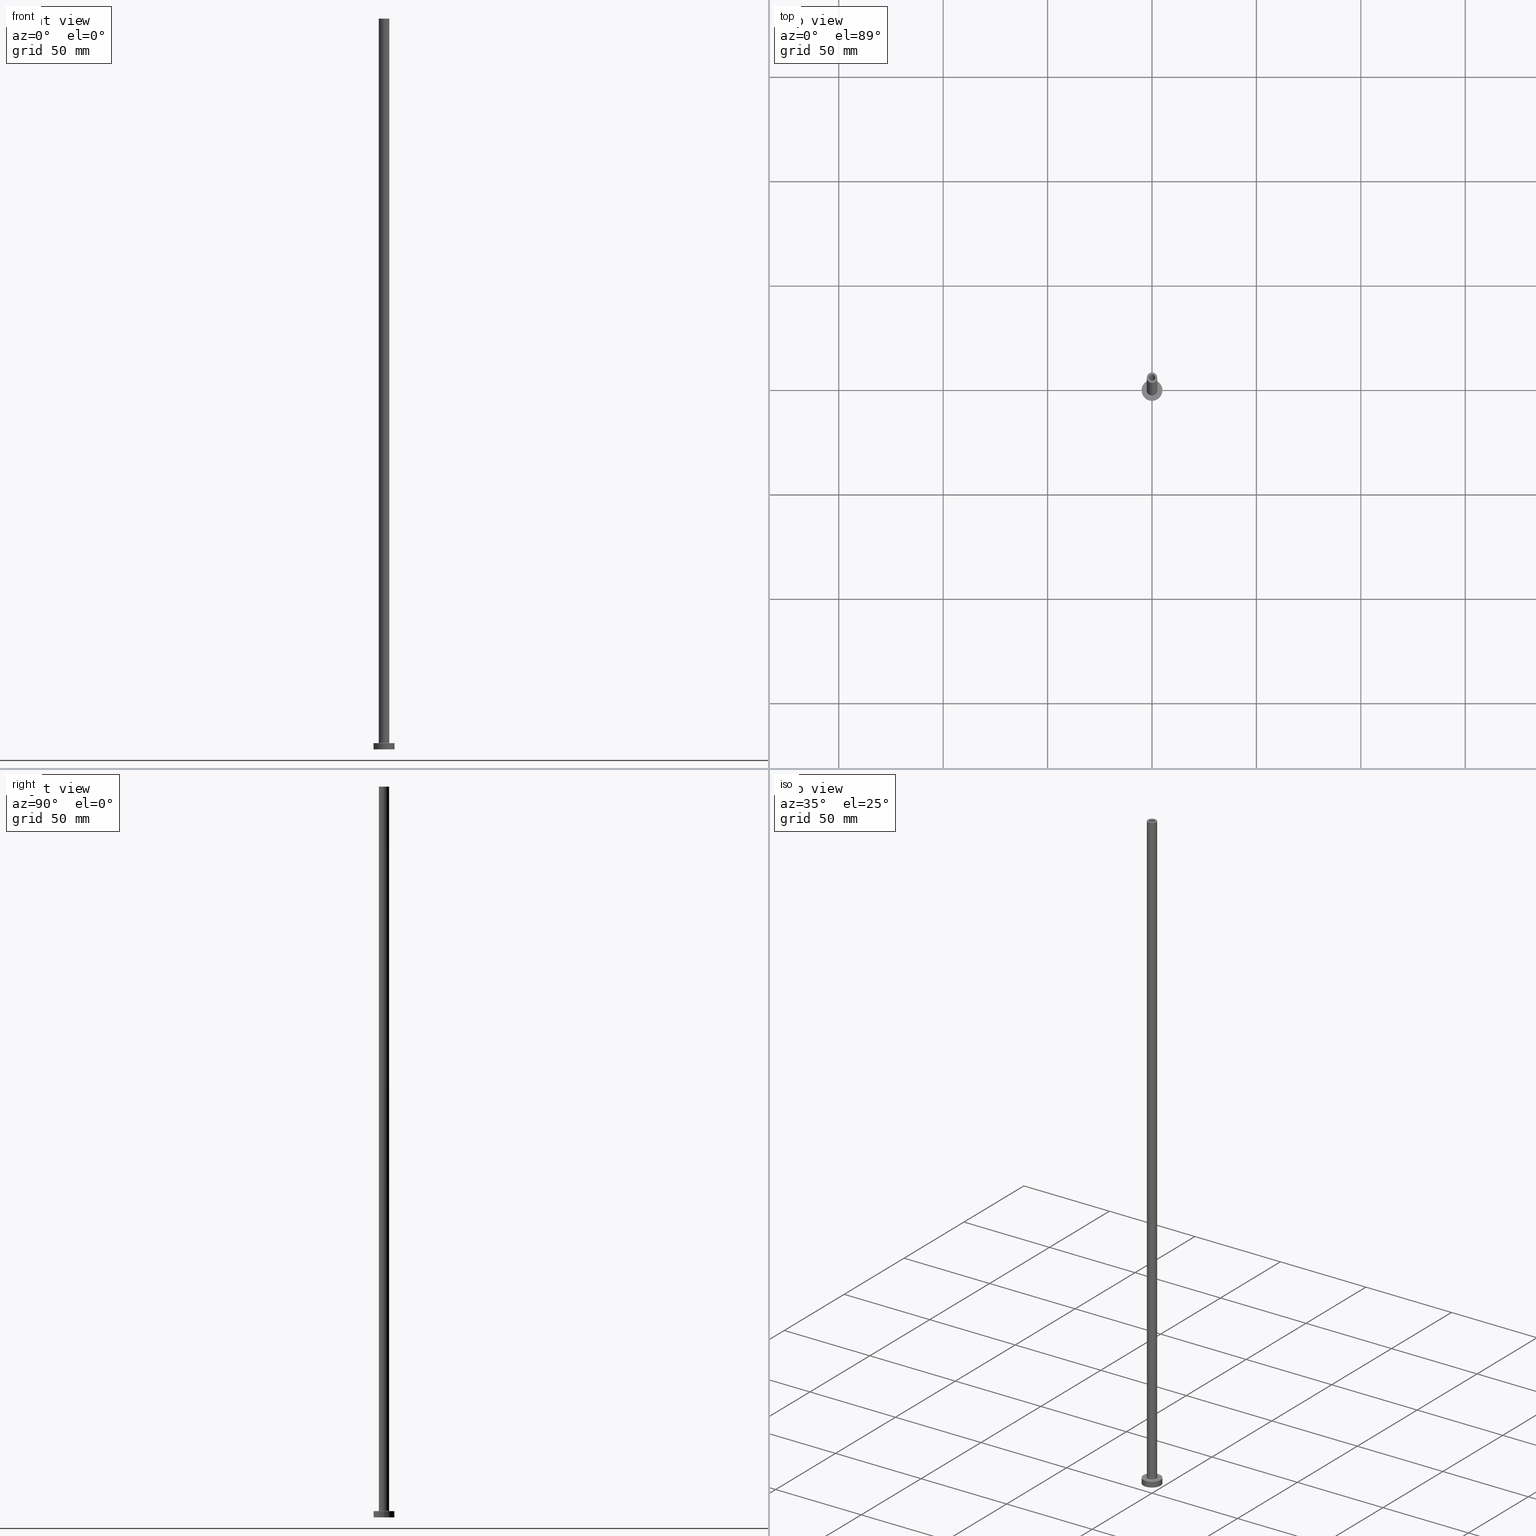
[diagram: canonical four-view strip — front | top / right | iso, engineering-drawing reading convention]
A machine part, canonical four-view strip (front | top / right | iso — engineering-drawing reading convention). The complete STEP part file that produces these views, byte-faithful:
ISO-10303-21;
HEADER;
FILE_DESCRIPTION (( 'STEP AP203' ),
    '1' );
FILE_NAME ('5996.STEP',
    '2023-02-13T17:59:22',
    ( '' ),
    ( '' ),
    'SwSTEP 2.0',
    'SolidWorks 2019',
    '' );
FILE_SCHEMA (( 'CONFIG_CONTROL_DESIGN' ));
ENDSEC;

DATA;
#1 = CIRCLE ( 'NONE', #326, 1.500000000000000222 ) ;
#2 = CARTESIAN_POINT ( 'NONE',  ( 0.000000000000000000, 0.000000000000000000, 305.0000000000000000 ) ) ;
#3 = EDGE_CURVE ( 'NONE', #157, #230, #451, .T. ) ;
#4 = LOCAL_TIME ( 18, 59, 22.00000000000000000, #332 ) ;
#5 = CARTESIAN_POINT ( 'NONE',  ( 1.650000000000000133, 2.020667218593133001E-16, 0.000000000000000000 ) ) ;
#6 = APPROVAL_DATE_TIME ( #176, #100 ) ;
#7 = CARTESIAN_POINT ( 'NONE',  ( 0.000000000000000000, 0.000000000000000000, 3.300000000000025135 ) ) ;
#8 = DIRECTION ( 'NONE',  ( 0.000000000000000000, 0.000000000000000000, 1.000000000000000000 ) ) ;
#9 = ORGANIZATION ( 'NEUR�EN�', 'NEUR�EN�', '' ) ;
#10 = DIRECTION ( 'NONE',  ( 0.000000000000000000, 0.000000000000000000, 1.000000000000000000 ) ) ;
#11 = VERTEX_POINT ( 'NONE', #341 ) ;
#12 = DIRECTION ( 'NONE',  ( 1.000000000000000000, 0.000000000000000000, 0.000000000000000000 ) ) ;
#13 = CALENDAR_DATE ( 2023, 13, 2 ) ;
#14 = CARTESIAN_POINT ( 'NONE',  ( -2.500000000000000000, 0.000000000000000000, 350.0000000000000000 ) ) ;
#15 = PERSON_AND_ORGANIZATION ( #222, #9 ) ;
#16 = VERTEX_POINT ( 'NONE', #28 ) ;
#17 = COORDINATED_UNIVERSAL_TIME_OFFSET ( 1, 0, .AHEAD. ) ;
#18 = CARTESIAN_POINT ( 'NONE',  ( -5.000000000000000000, 0.000000000000000000, 3.000000000000000000 ) ) ;
#19 = VERTEX_POINT ( 'NONE', #126 ) ;
#20 = VECTOR ( 'NONE', #115, 1000.000000000000000 ) ;
#21 = APPROVAL_STATUS ( 'not_yet_approved' ) ;
#22 = DIRECTION ( 'NONE',  ( 0.000000000000000000, 0.000000000000000000, -1.000000000000000000 ) ) ;
#23 = ORIENTED_EDGE ( 'NONE', *, *, #3, .F. ) ;
#24 = ADVANCED_FACE ( 'NONE', ( #265 ), #206, .F. ) ;
#25 = DIRECTION ( 'NONE',  ( -0.000000000000000000, -0.000000000000000000, -1.000000000000000000 ) ) ;
#26 = VERTEX_POINT ( 'NONE', #134 ) ;
#27 = CC_DESIGN_SECURITY_CLASSIFICATION ( #397, ( #65 ) ) ;
#28 = CARTESIAN_POINT ( 'NONE',  ( -2.500000000000000000, 0.000000000000000000, 350.0000000000000000 ) ) ;
#29 = EDGE_CURVE ( 'NONE', #230, #457, #213, .T. ) ;
#30 = VERTEX_POINT ( 'NONE', #273 ) ;
#31 = AXIS2_PLACEMENT_3D ( 'NONE', #435, #189, #323 ) ;
#32 = DIRECTION ( 'NONE',  ( 0.000000000000000000, 0.000000000000000000, 1.000000000000000000 ) ) ;
#33 = EDGE_CURVE ( 'NONE', #26, #290, #1, .T. ) ;
#34 = FACE_OUTER_BOUND ( 'NONE', #122, .T. ) ;
#35 = EDGE_CURVE ( 'NONE', #16, #59, #249, .T. ) ;
#36 = DIRECTION ( 'NONE',  ( 0.000000000000000000, 0.000000000000000000, -1.000000000000000000 ) ) ;
#37 = DIRECTION ( 'NONE',  ( -0.000000000000000000, -0.000000000000000000, -1.000000000000000000 ) ) ;
#38 = APPLICATION_CONTEXT ( 'configuration controlled 3d designs of mechanical parts and assemblies' ) ;
#39 = AXIS2_PLACEMENT_3D ( 'NONE', #217, #142, #106 ) ;
#40 = DIRECTION ( 'NONE',  ( 0.000000000000000000, 0.000000000000000000, 1.000000000000000000 ) ) ;
#41 =( LENGTH_UNIT ( ) NAMED_UNIT ( * ) SI_UNIT ( .MILLI., .METRE. ) );
#42 = DIRECTION ( 'NONE',  ( 0.000000000000000000, 0.000000000000000000, 1.000000000000000000 ) ) ;
#43 = CC_DESIGN_DATE_AND_TIME_ASSIGNMENT ( #199, #254, ( #423 ) ) ;
#44 = FACE_OUTER_BOUND ( 'NONE', #95, .T. ) ;
#45 = LOCAL_TIME ( 18, 59, 22.00000000000000000, #17 ) ;
#46 = CARTESIAN_POINT ( 'NONE',  ( 0.000000000000000000, 0.000000000000000000, 3.000000000000000000 ) ) ;
#47 = DIRECTION ( 'NONE',  ( 1.000000000000000000, 0.000000000000000000, 0.000000000000000000 ) ) ;
#48 = ORIENTED_EDGE ( 'NONE', *, *, #3, .T. ) ;
#49 = PERSON_AND_ORGANIZATION ( #222, #9 ) ;
#50 = DIRECTION ( 'NONE',  ( 1.000000000000000000, 0.000000000000000000, 0.000000000000000000 ) ) ;
#51 = CIRCLE ( 'NONE', #194, 5.000000000000000000 ) ;
#52 = SECURITY_CLASSIFICATION_LEVEL ( 'unclassified' ) ;
#53 = CARTESIAN_POINT ( 'NONE',  ( 0.000000000000000000, 0.000000000000000000, 350.0000000000000000 ) ) ;
#54 = EDGE_LOOP ( 'NONE', ( #153, #410, #438, #77 ) ) ;
#55 = PLANE ( 'NONE',  #61 ) ;
#56 = EDGE_CURVE ( 'NONE', #30, #11, #305, .T. ) ;
#57 = ORIENTED_EDGE ( 'NONE', *, *, #284, .T. ) ;
#58 = DATE_AND_TIME ( #338, #75 ) ;
#59 = VERTEX_POINT ( 'NONE', #427 ) ;
#60 = ORIENTED_EDGE ( 'NONE', *, *, #125, .T. ) ;
#61 = AXIS2_PLACEMENT_3D ( 'NONE', #117, #405, #446 ) ;
#62 = ORIENTED_EDGE ( 'NONE', *, *, #33, .F. ) ;
#63 = CARTESIAN_POINT ( 'NONE',  ( 2.500000000000000000, 3.061616997868383141E-16, 350.0000000000000000 ) ) ;
#64 = FACE_BOUND ( 'NONE', #404, .T. ) ;
#65 = PRODUCT_DEFINITION_FORMATION_WITH_SPECIFIED_SOURCE ( 'LIBOVOLN�', '', #151, .NOT_KNOWN. ) ;
#66 = DIRECTION ( 'NONE',  ( 0.000000000000000000, 0.000000000000000000, -1.000000000000000000 ) ) ;
#67 = EDGE_CURVE ( 'NONE', #157, #191, #306, .T. ) ;
#68 = DIRECTION ( 'NONE',  ( -0.000000000000000000, -0.000000000000000000, -1.000000000000000000 ) ) ;
#69 = CARTESIAN_POINT ( 'NONE',  ( 0.000000000000000000, 0.000000000000000000, 350.0000000000000000 ) ) ;
#70 = VECTOR ( 'NONE', #418, 1000.000000000000000 ) ;
#71 = CYLINDRICAL_SURFACE ( 'NONE', #156, 2.500000000000000000 ) ;
#72 = FACE_OUTER_BOUND ( 'NONE', #166, .T. ) ;
#73 = DIRECTION ( 'NONE',  ( 1.000000000000000000, 0.000000000000000000, 0.000000000000000000 ) ) ;
#74 = ORIENTED_EDGE ( 'NONE', *, *, #202, .F. ) ;
#75 = LOCAL_TIME ( 18, 59, 22.00000000000000000, #367 ) ;
#76 = DIRECTION ( 'NONE',  ( 0.000000000000000000, 0.000000000000000000, 1.000000000000000000 ) ) ;
#77 = ORIENTED_EDGE ( 'NONE', *, *, #347, .F. ) ;
#78 = EDGE_CURVE ( 'NONE', #378, #132, #90, .T. ) ;
#79 = PERSON_AND_ORGANIZATION_ROLE ( 'classification_officer' ) ;
#80 = CARTESIAN_POINT ( 'NONE',  ( -2.799999999999999822, 3.429011037612589276E-16, 3.000000000000012434 ) ) ;
#81 = ORIENTED_EDGE ( 'NONE', *, *, #261, .T. ) ;
#82 = MECHANICAL_CONTEXT ( 'NONE', #452, 'mechanical' ) ;
#83 = ORIENTED_EDGE ( 'NONE', *, *, #461, .T. ) ;
#84 = PERSON_AND_ORGANIZATION ( #222, #9 ) ;
#85 = EDGE_LOOP ( 'NONE', ( #116, #234 ) ) ;
#86 = EDGE_LOOP ( 'NONE', ( #304, #57, #196, #264 ) ) ;
#87 = PERSON_AND_ORGANIZATION ( #222, #9 ) ;
#88 = CC_DESIGN_PERSON_AND_ORGANIZATION_ASSIGNMENT ( #112, #224, ( #423 ) ) ;
#89 = ORIENTED_EDGE ( 'NONE', *, *, #212, .T. ) ;
#90 = CIRCLE ( 'NONE', #178, 1.650000000000000133 ) ;
#91 = ORIENTED_EDGE ( 'NONE', *, *, #35, .F. ) ;
#92 = VECTOR ( 'NONE', #36, 1000.000000000000000 ) ;
#93 = EDGE_LOOP ( 'NONE', ( #416, #414, #253, #74 ) ) ;
#94 = AXIS2_PLACEMENT_3D ( 'NONE', #7, #40, #137 ) ;
#95 = EDGE_LOOP ( 'NONE', ( #450, #118 ) ) ;
#96 = ADVANCED_FACE ( 'NONE', ( #459, #34 ), #101, .T. ) ;
#97 = AXIS2_PLACEMENT_3D ( 'NONE', #170, #138, #315 ) ;
#98 = AXIS2_PLACEMENT_3D ( 'NONE', #193, #25, #334 ) ;
#99 = LINE ( 'NONE', #350, #92 ) ;
#100 = APPROVAL ( #349, 'NEUR�EN�' ) ;
#101 = PLANE ( 'NONE',  #294 ) ;
#102 = EDGE_CURVE ( 'NONE', #147, #233, #342, .T. ) ;
#103 = CARTESIAN_POINT ( 'NONE',  ( 2.799999999999999822, 0.000000000000000000, 3.300000000000025135 ) ) ;
#104 = DIRECTION ( 'NONE',  ( 1.000000000000000000, 0.000000000000000000, 0.000000000000000000 ) ) ;
#105 = ADVANCED_FACE ( 'NONE', ( #314 ), #71, .T. ) ;
#106 = DIRECTION ( 'NONE',  ( 1.000000000000000000, 0.000000000000000000, 0.000000000000000000 ) ) ;
#107 = AXIS2_PLACEMENT_3D ( 'NONE', #181, #68, #104 ) ;
#108 = FACE_OUTER_BOUND ( 'NONE', #54, .T. ) ;
#109 = DIRECTION ( 'NONE',  ( 0.000000000000000000, 0.000000000000000000, -1.000000000000000000 ) ) ;
#110 = EDGE_CURVE ( 'NONE', #147, #19, #417, .T. ) ;
#111 = DIRECTION ( 'NONE',  ( 0.000000000000000000, 0.000000000000000000, 1.000000000000000000 ) ) ;
#112 = PERSON_AND_ORGANIZATION ( #222, #9 ) ;
#113 = CARTESIAN_POINT ( 'NONE',  ( -1.500000000000000222, 0.000000000000000000, 350.0000000000000000 ) ) ;
#114 = EDGE_LOOP ( 'NONE', ( #220, #60 ) ) ;
#115 = DIRECTION ( 'NONE',  ( -0.000000000000000000, -0.000000000000000000, -1.000000000000000000 ) ) ;
#116 = ORIENTED_EDGE ( 'NONE', *, *, #78, .F. ) ;
#117 = CARTESIAN_POINT ( 'NONE',  ( 0.000000000000000000, 0.000000000000000000, 3.000000000000000000 ) ) ;
#118 = ORIENTED_EDGE ( 'NONE', *, *, #29, .F. ) ;
#119 = APPROVAL_DATE_TIME ( #444, #420 ) ;
#120 = DIRECTION ( 'NONE',  ( 0.000000000000000000, 0.000000000000000000, -1.000000000000000000 ) ) ;
#121 = AXIS2_PLACEMENT_3D ( 'NONE', #434, #109, #389 ) ;
#122 = EDGE_LOOP ( 'NONE', ( #358, #237 ) ) ;
#123 = EDGE_CURVE ( 'NONE', #290, #26, #216, .T. ) ;
#124 = ORIENTED_EDGE ( 'NONE', *, *, #359, .T. ) ;
#125 = EDGE_CURVE ( 'NONE', #205, #19, #364, .T. ) ;
#126 = CARTESIAN_POINT ( 'NONE',  ( 2.799999999999999822, 0.000000000000000000, 3.000000000000012434 ) ) ;
#127 = AXIS2_PLACEMENT_3D ( 'NONE', #69, #42, #215 ) ;
#128 = FACE_OUTER_BOUND ( 'NONE', #207, .T. ) ;
#129 = DIRECTION ( 'NONE',  ( -0.000000000000000000, -0.000000000000000000, -1.000000000000000000 ) ) ;
#130 = CIRCLE ( 'NONE', #318, 1.500000000000000222 ) ;
#131 = ADVANCED_BREP_SHAPE_REPRESENTATION ( '5996', ( #171, #439 ), #408 ) ;
#132 = VERTEX_POINT ( 'NONE', #5 ) ;
#133 = AXIS2_PLACEMENT_3D ( 'NONE', #2, #136, #386 ) ;
#134 = CARTESIAN_POINT ( 'NONE',  ( 1.500000000000000222, 1.836970198721029934E-16, 350.0000000000000000 ) ) ;
#135 = AXIS2_PLACEMENT_3D ( 'NONE', #381, #32, #348 ) ;
#136 = DIRECTION ( 'NONE',  ( 0.000000000000000000, 0.000000000000000000, 1.000000000000000000 ) ) ;
#137 = DIRECTION ( 'NONE',  ( 1.000000000000000000, 0.000000000000000000, 0.000000000000000000 ) ) ;
#138 = DIRECTION ( 'NONE',  ( 0.000000000000000000, 0.000000000000000000, 1.000000000000000000 ) ) ;
#139 = CARTESIAN_POINT ( 'NONE',  ( 0.000000000000000000, 0.000000000000000000, 0.000000000000000000 ) ) ;
#140 = ADVANCED_FACE ( 'NONE', ( #64, #277 ), #240, .F. ) ;
#141 = AXIS2_PLACEMENT_3D ( 'NONE', #175, #276, #280 ) ;
#142 = DIRECTION ( 'NONE',  ( 0.000000000000000000, 0.000000000000000000, 1.000000000000000000 ) ) ;
#143 = PLANE ( 'NONE',  #330 ) ;
#144 = EDGE_LOOP ( 'NONE', ( #345, #186, #200, #307 ) ) ;
#145 = ADVANCED_FACE ( 'NONE', ( #275 ), #385, .T. ) ;
#146 = DIRECTION ( 'NONE',  ( -0.000000000000000000, -0.000000000000000000, -1.000000000000000000 ) ) ;
#147 = VERTEX_POINT ( 'NONE', #218 ) ;
#148 = PERSON_AND_ORGANIZATION_ROLE ( 'design_supplier' ) ;
#149 = DIRECTION ( 'NONE',  ( -0.000000000000000000, -0.000000000000000000, -1.000000000000000000 ) ) ;
#150 = ORIENTED_EDGE ( 'NONE', *, *, #110, .T. ) ;
#151 = PRODUCT ( '5996', '5996', '', ( #82 ) ) ;
#152 = CARTESIAN_POINT ( 'NONE',  ( 1.500000000000000222, 1.836970198721029934E-16, 305.0000000000000000 ) ) ;
#153 = ORIENTED_EDGE ( 'NONE', *, *, #123, .T. ) ;
#154 = CALENDAR_DATE ( 2023, 13, 2 ) ;
#155 = CARTESIAN_POINT ( 'NONE',  ( 5.000000000000000000, 6.123233995736766282E-16, 0.000000000000000000 ) ) ;
#156 = AXIS2_PLACEMENT_3D ( 'NONE', #428, #37, #313 ) ;
#157 = VERTEX_POINT ( 'NONE', #185 ) ;
#158 = DIRECTION ( 'NONE',  ( -0.000000000000000000, -0.000000000000000000, -1.000000000000000000 ) ) ;
#159 = UNCERTAINTY_MEASURE_WITH_UNIT (LENGTH_MEASURE( 1.000000000000000082E-05 ), #41, 'distance_accuracy_value', 'NONE');
#160 = LINE ( 'NONE', #299, #246 ) ;
#161 = EDGE_LOOP ( 'NONE', ( #320, #455, #192, #257 ) ) ;
#162 = APPROVAL_PERSON_ORGANIZATION ( #324, #340, #440 ) ;
#163 = EDGE_LOOP ( 'NONE', ( #400, #124, #83, #443 ) ) ;
#164 = EDGE_CURVE ( 'NONE', #19, #205, #188, .T. ) ;
#165 = CIRCLE ( 'NONE', #225, 1.500000000000000222 ) ;
#166 = EDGE_LOOP ( 'NONE', ( #23, #419, #300, #89 ) ) ;
#167 = CARTESIAN_POINT ( 'NONE',  ( 5.000000000000000000, 6.123233995736766282E-16, 3.000000000000000000 ) ) ;
#168 = AXIS2_PLACEMENT_3D ( 'NONE', #46, #149, #316 ) ;
#169 = CARTESIAN_POINT ( 'NONE',  ( -1.650000000000000133, 0.000000000000000000, 0.000000000000000000 ) ) ;
#170 = CARTESIAN_POINT ( 'NONE',  ( 0.000000000000000000, 0.000000000000000000, 305.0000000000000000 ) ) ;
#171 = MANIFOLD_SOLID_BREP ( 'Odebrat vysunut�m4', #287 ) ;
#172 = LINE ( 'NONE', #63, #70 ) ;
#173 = DIRECTION ( 'NONE',  ( 1.000000000000000000, 0.000000000000000000, -0.000000000000000000 ) ) ;
#174 = COORDINATED_UNIVERSAL_TIME_OFFSET ( 1, 0, .AHEAD. ) ;
#175 = CARTESIAN_POINT ( 'NONE',  ( 0.000000000000000000, 0.000000000000000000, 305.0000000000000000 ) ) ;
#176 = DATE_AND_TIME ( #245, #422 ) ;
#177 = TOROIDAL_SURFACE ( 'NONE', #301, 2.799999999999999822, 0.2999999999999999889 ) ;
#178 = AXIS2_PLACEMENT_3D ( 'NONE', #139, #279, #281 ) ;
#179 = DIRECTION ( 'NONE',  ( 0.000000000000000000, 0.000000000000000000, -1.000000000000000000 ) ) ;
#180 =( NAMED_UNIT ( * ) SI_UNIT ( $, .STERADIAN. ) SOLID_ANGLE_UNIT ( ) );
#181 = CARTESIAN_POINT ( 'NONE',  ( 0.000000000000000000, 0.000000000000000000, 3.000000000000000000 ) ) ;
#182 = DIRECTION ( 'NONE',  ( 1.000000000000000000, 0.000000000000000000, 0.000000000000000000 ) ) ;
#183 = ADVANCED_FACE ( 'NONE', ( #108 ), #331, .F. ) ;
#184 = APPROVAL_PERSON_ORGANIZATION ( #84, #420, #251 ) ;
#185 = CARTESIAN_POINT ( 'NONE',  ( 5.000000000000000000, 6.123233995736766282E-16, 3.000000000000000000 ) ) ;
#186 = ORIENTED_EDGE ( 'NONE', *, *, #401, .T. ) ;
#187 = CALENDAR_DATE ( 2023, 13, 2 ) ;
#188 = CIRCLE ( 'NONE', #384, 2.799999999999999822 ) ;
#189 = DIRECTION ( 'NONE',  ( 1.224646799147353207E-16, 1.000000000000000000, -0.000000000000000000 ) ) ;
#190 = CC_DESIGN_DATE_AND_TIME_ASSIGNMENT ( #293, #441, ( #397 ) ) ;
#191 = VERTEX_POINT ( 'NONE', #18 ) ;
#192 = ORIENTED_EDGE ( 'NONE', *, *, #102, .T. ) ;
#193 = CARTESIAN_POINT ( 'NONE',  ( 0.000000000000000000, 0.000000000000000000, 0.000000000000000000 ) ) ;
#194 = AXIS2_PLACEMENT_3D ( 'NONE', #356, #111, #252 ) ;
#195 = DIRECTION ( 'NONE',  ( 0.000000000000000000, 0.000000000000000000, -1.000000000000000000 ) ) ;
#196 = ORIENTED_EDGE ( 'NONE', *, *, #164, .F. ) ;
#197 = LINE ( 'NONE', #336, #388 ) ;
#198 = ORIENTED_EDGE ( 'NONE', *, *, #29, .T. ) ;
#199 = DATE_AND_TIME ( #13, #241 ) ;
#200 = ORIENTED_EDGE ( 'NONE', *, *, #424, .T. ) ;
#201 = AXIS2_PLACEMENT_3D ( 'NONE', #236, #179, #208 ) ;
#202 = EDGE_CURVE ( 'NONE', #296, #363, #165, .T. ) ;
#203 = PRODUCT_RELATED_PRODUCT_CATEGORY ( 'detail', '', ( #151 ) ) ;
#204 = CIRCLE ( 'NONE', #39, 2.500000000000000000 ) ;
#205 = VERTEX_POINT ( 'NONE', #80 ) ;
#206 = CYLINDRICAL_SURFACE ( 'NONE', #201, 1.650000000000000133 ) ;
#207 = EDGE_LOOP ( 'NONE', ( #447, #223 ) ) ;
#208 = DIRECTION ( 'NONE',  ( -1.000000000000000000, 0.000000000000000000, 0.000000000000000000 ) ) ;
#209 = AXIS2_PLACEMENT_3D ( 'NONE', #267, #158, #298 ) ;
#210 = EDGE_CURVE ( 'NONE', #16, #233, #366, .T. ) ;
#211 = CARTESIAN_POINT ( 'NONE',  ( 0.000000000000000000, 0.000000000000000000, 3.000000000000000000 ) ) ;
#212 = EDGE_CURVE ( 'NONE', #457, #230, #51, .T. ) ;
#213 = CIRCLE ( 'NONE', #135, 5.000000000000000000 ) ;
#214 = DIRECTION ( 'NONE',  ( -1.000000000000000000, 0.000000000000000000, 0.000000000000000000 ) ) ;
#215 = DIRECTION ( 'NONE',  ( 1.000000000000000000, 0.000000000000000000, 0.000000000000000000 ) ) ;
#216 = CIRCLE ( 'NONE', #458, 1.500000000000000222 ) ;
#217 = CARTESIAN_POINT ( 'NONE',  ( 0.000000000000000000, 0.000000000000000000, 350.0000000000000000 ) ) ;
#218 = CARTESIAN_POINT ( 'NONE',  ( 2.500000000000000000, 3.061616997868383141E-16, 3.300000000000025135 ) ) ;
#219 = CYLINDRICAL_SURFACE ( 'NONE', #168, 5.000000000000000000 ) ;
#220 = ORIENTED_EDGE ( 'NONE', *, *, #164, .T. ) ;
#221 = CC_DESIGN_APPROVAL ( #100, ( #397 ) ) ;
#222 = PERSON ( 'NEUR�EN�', 'NEUR�EN�', 'NEUR�EN�', ('NEUR�EN�'), ('NEUR�EN�'), ('NEUR�EN�') ) ;
#223 = ORIENTED_EDGE ( 'NONE', *, *, #67, .T. ) ;
#224 = PERSON_AND_ORGANIZATION_ROLE ( 'creator' ) ;
#225 = AXIS2_PLACEMENT_3D ( 'NONE', #442, #362, #248 ) ;
#226 = DIRECTION ( 'NONE',  ( 1.000000000000000000, 0.000000000000000000, -0.000000000000000000 ) ) ;
#227 = CC_DESIGN_PERSON_AND_ORGANIZATION_ASSIGNMENT ( #409, #148, ( #65 ) ) ;
#228 = PERSON_AND_ORGANIZATION_ROLE ( 'design_owner' ) ;
#229 = CARTESIAN_POINT ( 'NONE',  ( 0.000000000000000000, 0.000000000000000000, 3.000000000000000000 ) ) ;
#230 = VERTEX_POINT ( 'NONE', #155 ) ;
#231 = AXIS2_PLACEMENT_3D ( 'NONE', #250, #76, #47 ) ;
#232 = EDGE_CURVE ( 'NONE', #191, #157, #377, .T. ) ;
#233 = VERTEX_POINT ( 'NONE', #295 ) ;
#234 = ORIENTED_EDGE ( 'NONE', *, *, #461, .F. ) ;
#235 = CC_DESIGN_APPROVAL ( #420, ( #65 ) ) ;
#236 = CARTESIAN_POINT ( 'NONE',  ( 0.000000000000000000, 0.000000000000000000, 309.6669047558311831 ) ) ;
#237 = ORIENTED_EDGE ( 'NONE', *, *, #432, .T. ) ;
#238 = CYLINDRICAL_SURFACE ( 'NONE', #262, 1.500000000000000222 ) ;
#239 = FACE_OUTER_BOUND ( 'NONE', #93, .T. ) ;
#240 = PLANE ( 'NONE',  #133 ) ;
#241 = LOCAL_TIME ( 18, 59, 22.00000000000000000, #365 ) ;
#242 = DIRECTION ( 'NONE',  ( 1.000000000000000000, 0.000000000000000000, 0.000000000000000000 ) ) ;
#243 = ADVANCED_FACE ( 'NONE', ( #357, #44 ), #143, .F. ) ;
#244 = DIRECTION ( 'NONE',  ( -0.000000000000000000, -0.000000000000000000, -1.000000000000000000 ) ) ;
#245 = CALENDAR_DATE ( 2023, 13, 2 ) ;
#246 = VECTOR ( 'NONE', #120, 1000.000000000000000 ) ;
#247 = DIRECTION ( 'NONE',  ( 0.000000000000000000, 0.000000000000000000, -1.000000000000000000 ) ) ;
#248 = DIRECTION ( 'NONE',  ( 1.000000000000000000, 0.000000000000000000, 0.000000000000000000 ) ) ;
#249 = CIRCLE ( 'NONE', #127, 2.500000000000000000 ) ;
#250 = CARTESIAN_POINT ( 'NONE',  ( 0.000000000000000000, 0.000000000000000000, 3.300000000000025135 ) ) ;
#251 = APPROVAL_ROLE ( '' ) ;
#252 = DIRECTION ( 'NONE',  ( 1.000000000000000000, 0.000000000000000000, 0.000000000000000000 ) ) ;
#253 = ORIENTED_EDGE ( 'NONE', *, *, #347, .T. ) ;
#254 = DATE_TIME_ROLE ( 'creation_date' ) ;
#255 =( NAMED_UNIT ( * ) PLANE_ANGLE_UNIT ( ) SI_UNIT ( $, .RADIAN. ) );
#256 = FACE_BOUND ( 'NONE', #114, .T. ) ;
#257 = ORIENTED_EDGE ( 'NONE', *, *, #210, .F. ) ;
#258 = CARTESIAN_POINT ( 'NONE',  ( -5.000000000000000000, 0.000000000000000000, 0.000000000000000000 ) ) ;
#259 = EDGE_LOOP ( 'NONE', ( #263, #91, #407, #329 ) ) ;
#260 = PERSON_AND_ORGANIZATION_ROLE ( 'creator' ) ;
#261 = EDGE_CURVE ( 'NONE', #363, #296, #130, .T. ) ;
#262 = AXIS2_PLACEMENT_3D ( 'NONE', #312, #380, #309 ) ;
#263 = ORIENTED_EDGE ( 'NONE', *, *, #374, .F. ) ;
#264 = ORIENTED_EDGE ( 'NONE', *, *, #110, .F. ) ;
#265 = FACE_OUTER_BOUND ( 'NONE', #163, .T. ) ;
#266 = ADVANCED_FACE ( 'NONE', ( #72 ), #219, .T. ) ;
#267 = CARTESIAN_POINT ( 'NONE',  ( 0.000000000000000000, 0.000000000000000000, 350.0000000000000000 ) ) ;
#268 = CIRCLE ( 'NONE', #31, 0.2999999999999999334 ) ;
#269 = ORIENTED_EDGE ( 'NONE', *, *, #56, .F. ) ;
#270 = CARTESIAN_POINT ( 'NONE',  ( -1.500000000000000222, 0.000000000000000000, 305.0000000000000000 ) ) ;
#271 = ORIENTED_EDGE ( 'NONE', *, *, #284, .F. ) ;
#272 = EDGE_CURVE ( 'NONE', #233, #147, #282, .T. ) ;
#273 = CARTESIAN_POINT ( 'NONE',  ( -1.650000000000000133, 0.000000000000000000, 305.0000000000000000 ) ) ;
#274 = ADVANCED_FACE ( 'NONE', ( #285 ), #448, .F. ) ;
#275 = FACE_OUTER_BOUND ( 'NONE', #379, .T. ) ;
#276 = DIRECTION ( 'NONE',  ( 0.000000000000000000, 0.000000000000000000, 1.000000000000000000 ) ) ;
#277 = FACE_OUTER_BOUND ( 'NONE', #394, .T. ) ;
#278 = SHAPE_DEFINITION_REPRESENTATION ( #328, #131 ) ;
#279 = DIRECTION ( 'NONE',  ( -0.000000000000000000, -0.000000000000000000, -1.000000000000000000 ) ) ;
#280 = DIRECTION ( 'NONE',  ( 1.000000000000000000, 0.000000000000000000, 0.000000000000000000 ) ) ;
#281 = DIRECTION ( 'NONE',  ( 1.000000000000000000, 0.000000000000000000, 0.000000000000000000 ) ) ;
#282 = CIRCLE ( 'NONE', #291, 2.500000000000000000 ) ;
#283 = CARTESIAN_POINT ( 'NONE',  ( 0.000000000000000000, 0.000000000000000000, 305.0000000000000000 ) ) ;
#284 = EDGE_CURVE ( 'NONE', #233, #205, #268, .T. ) ;
#285 = FACE_OUTER_BOUND ( 'NONE', #86, .T. ) ;
#286 = DIRECTION ( 'NONE',  ( 0.000000000000000000, 0.000000000000000000, 1.000000000000000000 ) ) ;
#287 = CLOSED_SHELL ( 'NONE', ( #183, #24, #274, #449, #145, #266, #322, #243, #105, #96, #308, #412, #140, #376 ) ) ;
#288 = EDGE_CURVE ( 'NONE', #191, #457, #437, .T. ) ;
#289 = DIRECTION ( 'NONE',  ( 0.000000000000000000, 0.000000000000000000, 1.000000000000000000 ) ) ;
#290 = VERTEX_POINT ( 'NONE', #113 ) ;
#291 = AXIS2_PLACEMENT_3D ( 'NONE', #433, #396, #50 ) ;
#292 = FACE_OUTER_BOUND ( 'NONE', #317, .T. ) ;
#293 = DATE_AND_TIME ( #154, #45 ) ;
#294 = AXIS2_PLACEMENT_3D ( 'NONE', #383, #346, #173 ) ;
#295 = CARTESIAN_POINT ( 'NONE',  ( -2.500000000000000000, 0.000000000000000000, 3.300000000000025135 ) ) ;
#296 = VERTEX_POINT ( 'NONE', #152 ) ;
#297 = APPLICATION_PROTOCOL_DEFINITION ( 'international standard', 'config_control_design', 1994, #452 ) ;
#298 = DIRECTION ( 'NONE',  ( -1.000000000000000000, 0.000000000000000000, 0.000000000000000000 ) ) ;
#299 = CARTESIAN_POINT ( 'NONE',  ( 1.650000000000000133, 2.020667218593133001E-16, 309.6669047558311831 ) ) ;
#300 = ORIENTED_EDGE ( 'NONE', *, *, #288, .T. ) ;
#301 = AXIS2_PLACEMENT_3D ( 'NONE', #403, #344, #454 ) ;
#302 = ORIENTED_EDGE ( 'NONE', *, *, #401, .F. ) ;
#303 = CC_DESIGN_PERSON_AND_ORGANIZATION_ASSIGNMENT ( #49, #260, ( #65 ) ) ;
#304 = ORIENTED_EDGE ( 'NONE', *, *, #272, .F. ) ;
#305 = CIRCLE ( 'NONE', #97, 1.650000000000000133 ) ;
#306 = CIRCLE ( 'NONE', #406, 5.000000000000000000 ) ;
#307 = ORIENTED_EDGE ( 'NONE', *, *, #78, .T. ) ;
#308 = ADVANCED_FACE ( 'NONE', ( #292 ), #177, .F. ) ;
#309 = DIRECTION ( 'NONE',  ( -1.000000000000000000, 0.000000000000000000, 0.000000000000000000 ) ) ;
#310 = DIRECTION ( 'NONE',  ( 1.000000000000000000, 0.000000000000000000, 0.000000000000000000 ) ) ;
#311 = APPROVAL_ROLE ( '' ) ;
#312 = CARTESIAN_POINT ( 'NONE',  ( 0.000000000000000000, 0.000000000000000000, 350.0000000000000000 ) ) ;
#313 = DIRECTION ( 'NONE',  ( -1.000000000000000000, 0.000000000000000000, 0.000000000000000000 ) ) ;
#314 = FACE_OUTER_BOUND ( 'NONE', #259, .T. ) ;
#315 = DIRECTION ( 'NONE',  ( 1.000000000000000000, 0.000000000000000000, 0.000000000000000000 ) ) ;
#316 = DIRECTION ( 'NONE',  ( -1.000000000000000000, 0.000000000000000000, 0.000000000000000000 ) ) ;
#317 = EDGE_LOOP ( 'NONE', ( #271, #375, #150, #337 ) ) ;
#318 = AXIS2_PLACEMENT_3D ( 'NONE', #283, #289, #182 ) ;
#319 = CARTESIAN_POINT ( 'NONE',  ( 0.000000000000000000, 0.000000000000000000, 0.000000000000000000 ) ) ;
#320 = ORIENTED_EDGE ( 'NONE', *, *, #432, .F. ) ;
#321 = APPROVAL_STATUS ( 'not_yet_approved' ) ;
#322 = ADVANCED_FACE ( 'NONE', ( #256, #128 ), #55, .T. ) ;
#323 = DIRECTION ( 'NONE',  ( -1.000000000000000000, 1.224646799147353207E-16, 0.000000000000000000 ) ) ;
#324 = PERSON_AND_ORGANIZATION ( #222, #9 ) ;
#325 = CARTESIAN_POINT ( 'NONE',  ( -1.650000000000000133, 0.000000000000000000, 309.6669047558311831 ) ) ;
#326 = AXIS2_PLACEMENT_3D ( 'NONE', #352, #351, #387 ) ;
#327 = DIRECTION ( 'NONE',  ( -0.000000000000000000, -0.000000000000000000, -1.000000000000000000 ) ) ;
#328 = PRODUCT_DEFINITION_SHAPE ( 'NONE', 'NONE',  #423 ) ;
#329 = ORIENTED_EDGE ( 'NONE', *, *, #272, .T. ) ;
#330 = AXIS2_PLACEMENT_3D ( 'NONE', #319, #390, #226 ) ;
#331 = CYLINDRICAL_SURFACE ( 'NONE', #426, 1.500000000000000222 ) ;
#332 = COORDINATED_UNIVERSAL_TIME_OFFSET ( 1, 0, .AHEAD. ) ;
#333 = AXIS2_PLACEMENT_3D ( 'NONE', #103, #431, #66 ) ;
#334 = DIRECTION ( 'NONE',  ( 1.000000000000000000, 0.000000000000000000, 0.000000000000000000 ) ) ;
#335 = DESIGN_CONTEXT ( 'detailed design', #38, 'design' ) ;
#336 = CARTESIAN_POINT ( 'NONE',  ( -1.500000000000000222, 0.000000000000000000, 350.0000000000000000 ) ) ;
#337 = ORIENTED_EDGE ( 'NONE', *, *, #125, .F. ) ;
#338 = CALENDAR_DATE ( 2023, 13, 2 ) ;
#339 = ORIENTED_EDGE ( 'NONE', *, *, #202, .T. ) ;
#340 = APPROVAL ( #321, 'NEUR�EN�' ) ;
#341 = CARTESIAN_POINT ( 'NONE',  ( 1.650000000000000133, 2.020667218593133001E-16, 305.0000000000000000 ) ) ;
#342 = CIRCLE ( 'NONE', #94, 2.500000000000000000 ) ;
#343 = EDGE_LOOP ( 'NONE', ( #373, #62 ) ) ;
#344 = DIRECTION ( 'NONE',  ( 0.000000000000000000, 0.000000000000000000, 1.000000000000000000 ) ) ;
#345 = ORIENTED_EDGE ( 'NONE', *, *, #359, .F. ) ;
#346 = DIRECTION ( 'NONE',  ( 0.000000000000000000, 0.000000000000000000, 1.000000000000000000 ) ) ;
#347 = EDGE_CURVE ( 'NONE', #290, #363, #197, .T. ) ;
#348 = DIRECTION ( 'NONE',  ( 1.000000000000000000, 0.000000000000000000, 0.000000000000000000 ) ) ;
#349 = APPROVAL_STATUS ( 'not_yet_approved' ) ;
#350 = CARTESIAN_POINT ( 'NONE',  ( 1.500000000000000222, 1.836970198721029934E-16, 350.0000000000000000 ) ) ;
#351 = DIRECTION ( 'NONE',  ( 0.000000000000000000, 0.000000000000000000, 1.000000000000000000 ) ) ;
#352 = CARTESIAN_POINT ( 'NONE',  ( 0.000000000000000000, 0.000000000000000000, 350.0000000000000000 ) ) ;
#353 = APPROVAL_PERSON_ORGANIZATION ( #87, #100, #311 ) ;
#354 = CC_DESIGN_PERSON_AND_ORGANIZATION_ASSIGNMENT ( #398, #79, ( #397 ) ) ;
#355 = CARTESIAN_POINT ( 'NONE',  ( 0.000000000000000000, 0.000000000000000000, 350.0000000000000000 ) ) ;
#356 = CARTESIAN_POINT ( 'NONE',  ( 0.000000000000000000, 0.000000000000000000, 0.000000000000000000 ) ) ;
#357 = FACE_BOUND ( 'NONE', #85, .T. ) ;
#358 = ORIENTED_EDGE ( 'NONE', *, *, #35, .T. ) ;
#359 = EDGE_CURVE ( 'NONE', #11, #132, #160, .T. ) ;
#360 = CC_DESIGN_APPROVAL ( #340, ( #423 ) ) ;
#361 = APPROVAL_DATE_TIME ( #58, #340 ) ;
#362 = DIRECTION ( 'NONE',  ( 0.000000000000000000, 0.000000000000000000, 1.000000000000000000 ) ) ;
#363 = VERTEX_POINT ( 'NONE', #270 ) ;
#364 = CIRCLE ( 'NONE', #107, 2.799999999999999822 ) ;
#365 = COORDINATED_UNIVERSAL_TIME_OFFSET ( 1, 0, .AHEAD. ) ;
#366 = LINE ( 'NONE', #14, #20 ) ;
#367 = COORDINATED_UNIVERSAL_TIME_OFFSET ( 1, 0, .AHEAD. ) ;
#368 = DIRECTION ( 'NONE',  ( -1.000000000000000000, 0.000000000000000000, 0.000000000000000000 ) ) ;
#369 = ORIENTED_EDGE ( 'NONE', *, *, #288, .F. ) ;
#370 = VECTOR ( 'NONE', #247, 1000.000000000000000 ) ;
#371 = FACE_OUTER_BOUND ( 'NONE', #161, .T. ) ;
#372 = APPLICATION_PROTOCOL_DEFINITION ( 'international standard', 'config_control_design', 1994, #38 ) ;
#373 = ORIENTED_EDGE ( 'NONE', *, *, #123, .F. ) ;
#374 = EDGE_CURVE ( 'NONE', #59, #147, #172, .T. ) ;
#375 = ORIENTED_EDGE ( 'NONE', *, *, #102, .F. ) ;
#376 = ADVANCED_FACE ( 'NONE', ( #239 ), #238, .F. ) ;
#377 = CIRCLE ( 'NONE', #430, 5.000000000000000000 ) ;
#378 = VERTEX_POINT ( 'NONE', #169 ) ;
#379 = EDGE_LOOP ( 'NONE', ( #413, #48, #198, #369 ) ) ;
#380 = DIRECTION ( 'NONE',  ( 0.000000000000000000, 0.000000000000000000, -1.000000000000000000 ) ) ;
#381 = CARTESIAN_POINT ( 'NONE',  ( 0.000000000000000000, 0.000000000000000000, 0.000000000000000000 ) ) ;
#382 = CIRCLE ( 'NONE', #98, 1.650000000000000133 ) ;
#383 = CARTESIAN_POINT ( 'NONE',  ( 0.000000000000000000, 0.000000000000000000, 350.0000000000000000 ) ) ;
#384 = AXIS2_PLACEMENT_3D ( 'NONE', #229, #146, #12 ) ;
#385 = CYLINDRICAL_SURFACE ( 'NONE', #411, 5.000000000000000000 ) ;
#386 = DIRECTION ( 'NONE',  ( 1.000000000000000000, 0.000000000000000000, -0.000000000000000000 ) ) ;
#387 = DIRECTION ( 'NONE',  ( 1.000000000000000000, 0.000000000000000000, 0.000000000000000000 ) ) ;
#388 = VECTOR ( 'NONE', #22, 1000.000000000000000 ) ;
#389 = DIRECTION ( 'NONE',  ( -1.000000000000000000, 0.000000000000000000, 0.000000000000000000 ) ) ;
#390 = DIRECTION ( 'NONE',  ( 0.000000000000000000, 0.000000000000000000, 1.000000000000000000 ) ) ;
#391 = CYLINDRICAL_SURFACE ( 'NONE', #121, 1.650000000000000133 ) ;
#392 = EDGE_CURVE ( 'NONE', #26, #296, #99, .T. ) ;
#393 = CARTESIAN_POINT ( 'NONE',  ( 0.000000000000000000, 0.000000000000000000, 3.000000000000000000 ) ) ;
#394 = EDGE_LOOP ( 'NONE', ( #269, #302 ) ) ;
#395 = LINE ( 'NONE', #325, #370 ) ;
#396 = DIRECTION ( 'NONE',  ( 0.000000000000000000, 0.000000000000000000, 1.000000000000000000 ) ) ;
#397 = SECURITY_CLASSIFICATION ( '', '', #52 ) ;
#398 = PERSON_AND_ORGANIZATION ( #222, #9 ) ;
#399 = CARTESIAN_POINT ( 'NONE',  ( -5.000000000000000000, 0.000000000000000000, 3.000000000000000000 ) ) ;
#400 = ORIENTED_EDGE ( 'NONE', *, *, #56, .T. ) ;
#401 = EDGE_CURVE ( 'NONE', #11, #30, #415, .T. ) ;
#402 = CARTESIAN_POINT ( 'NONE',  ( 0.000000000000000000, 0.000000000000000000, 0.000000000000000000 ) ) ;
#403 = CARTESIAN_POINT ( 'NONE',  ( 0.000000000000000000, 0.000000000000000000, 3.300000000000025135 ) ) ;
#404 = EDGE_LOOP ( 'NONE', ( #81, #339 ) ) ;
#405 = DIRECTION ( 'NONE',  ( 0.000000000000000000, 0.000000000000000000, 1.000000000000000000 ) ) ;
#406 = AXIS2_PLACEMENT_3D ( 'NONE', #425, #8, #242 ) ;
#407 = ORIENTED_EDGE ( 'NONE', *, *, #210, .T. ) ;
#408 =( GEOMETRIC_REPRESENTATION_CONTEXT ( 3 ) GLOBAL_UNCERTAINTY_ASSIGNED_CONTEXT ( ( #159 ) ) GLOBAL_UNIT_ASSIGNED_CONTEXT ( ( #41, #255, #180 ) ) REPRESENTATION_CONTEXT ( 'NONE', 'WORKASPACE' ) );
#409 = PERSON_AND_ORGANIZATION ( #222, #9 ) ;
#410 = ORIENTED_EDGE ( 'NONE', *, *, #392, .T. ) ;
#411 = AXIS2_PLACEMENT_3D ( 'NONE', #211, #244, #214 ) ;
#412 = ADVANCED_FACE ( 'NONE', ( #429 ), #391, .F. ) ;
#413 = ORIENTED_EDGE ( 'NONE', *, *, #67, .F. ) ;
#414 = ORIENTED_EDGE ( 'NONE', *, *, #33, .T. ) ;
#415 = CIRCLE ( 'NONE', #141, 1.650000000000000133 ) ;
#416 = ORIENTED_EDGE ( 'NONE', *, *, #392, .F. ) ;
#417 = CIRCLE ( 'NONE', #333, 0.2999999999999999334 ) ;
#418 = DIRECTION ( 'NONE',  ( -0.000000000000000000, -0.000000000000000000, -1.000000000000000000 ) ) ;
#419 = ORIENTED_EDGE ( 'NONE', *, *, #232, .F. ) ;
#420 = APPROVAL ( #21, 'NEUR�EN�' ) ;
#421 = DIRECTION ( 'NONE',  ( 0.000000000000000000, 0.000000000000000000, 1.000000000000000000 ) ) ;
#422 = LOCAL_TIME ( 18, 59, 22.00000000000000000, #174 ) ;
#423 = PRODUCT_DEFINITION ( 'NEZN�M�', '', #65, #335 ) ;
#424 = EDGE_CURVE ( 'NONE', #30, #378, #395, .T. ) ;
#425 = CARTESIAN_POINT ( 'NONE',  ( 0.000000000000000000, 0.000000000000000000, 3.000000000000000000 ) ) ;
#426 = AXIS2_PLACEMENT_3D ( 'NONE', #53, #195, #368 ) ;
#427 = CARTESIAN_POINT ( 'NONE',  ( 2.500000000000000000, 3.061616997868383141E-16, 350.0000000000000000 ) ) ;
#428 = CARTESIAN_POINT ( 'NONE',  ( 0.000000000000000000, 0.000000000000000000, 350.0000000000000000 ) ) ;
#429 = FACE_OUTER_BOUND ( 'NONE', #144, .T. ) ;
#430 = AXIS2_PLACEMENT_3D ( 'NONE', #393, #10, #73 ) ;
#431 = DIRECTION ( 'NONE',  ( 0.000000000000000000, -1.000000000000000000, 0.000000000000000000 ) ) ;
#432 = EDGE_CURVE ( 'NONE', #59, #16, #204, .T. ) ;
#433 = CARTESIAN_POINT ( 'NONE',  ( 0.000000000000000000, 0.000000000000000000, 3.300000000000025135 ) ) ;
#434 = CARTESIAN_POINT ( 'NONE',  ( 0.000000000000000000, 0.000000000000000000, 309.6669047558311831 ) ) ;
#435 = CARTESIAN_POINT ( 'NONE',  ( -2.799999999999999822, 3.429011037612588783E-16, 3.300000000000025135 ) ) ;
#436 = DIRECTION ( 'NONE',  ( 1.000000000000000000, 0.000000000000000000, 0.000000000000000000 ) ) ;
#437 = LINE ( 'NONE', #399, #456 ) ;
#438 = ORIENTED_EDGE ( 'NONE', *, *, #261, .F. ) ;
#439 = AXIS2_PLACEMENT_3D ( 'NONE', #402, #286, #436 ) ;
#440 = APPROVAL_ROLE ( '' ) ;
#441 = DATE_TIME_ROLE ( 'classification_date' ) ;
#442 = CARTESIAN_POINT ( 'NONE',  ( 0.000000000000000000, 0.000000000000000000, 305.0000000000000000 ) ) ;
#443 = ORIENTED_EDGE ( 'NONE', *, *, #424, .F. ) ;
#444 = DATE_AND_TIME ( #187, #4 ) ;
#445 = VECTOR ( 'NONE', #129, 1000.000000000000000 ) ;
#446 = DIRECTION ( 'NONE',  ( 1.000000000000000000, 0.000000000000000000, -0.000000000000000000 ) ) ;
#447 = ORIENTED_EDGE ( 'NONE', *, *, #232, .T. ) ;
#448 = TOROIDAL_SURFACE ( 'NONE', #231, 2.799999999999999822, 0.2999999999999999889 ) ;
#449 = ADVANCED_FACE ( 'NONE', ( #371 ), #453, .T. ) ;
#450 = ORIENTED_EDGE ( 'NONE', *, *, #212, .F. ) ;
#451 = LINE ( 'NONE', #167, #445 ) ;
#452 = APPLICATION_CONTEXT ( 'configuration controlled 3d designs of mechanical parts and assemblies' ) ;
#453 = CYLINDRICAL_SURFACE ( 'NONE', #209, 2.500000000000000000 ) ;
#454 = DIRECTION ( 'NONE',  ( 1.000000000000000000, 0.000000000000000000, 0.000000000000000000 ) ) ;
#455 = ORIENTED_EDGE ( 'NONE', *, *, #374, .T. ) ;
#456 = VECTOR ( 'NONE', #327, 1000.000000000000000 ) ;
#457 = VERTEX_POINT ( 'NONE', #258 ) ;
#458 = AXIS2_PLACEMENT_3D ( 'NONE', #355, #421, #310 ) ;
#459 = FACE_BOUND ( 'NONE', #343, .T. ) ;
#460 = CC_DESIGN_PERSON_AND_ORGANIZATION_ASSIGNMENT ( #15, #228, ( #151 ) ) ;
#461 = EDGE_CURVE ( 'NONE', #132, #378, #382, .T. ) ;
ENDSEC;
END-ISO-10303-21;
